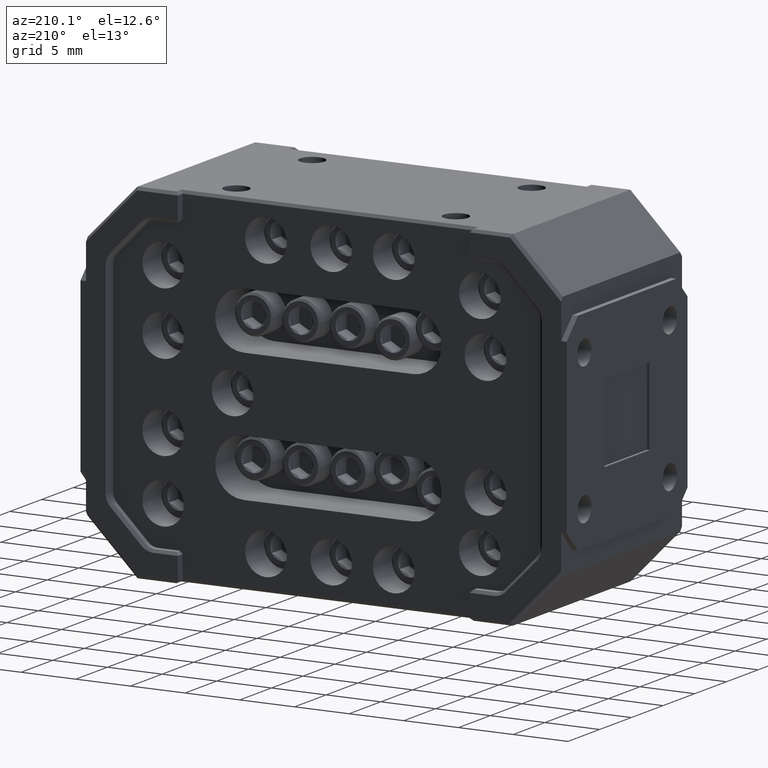
[diagram: clean part render]
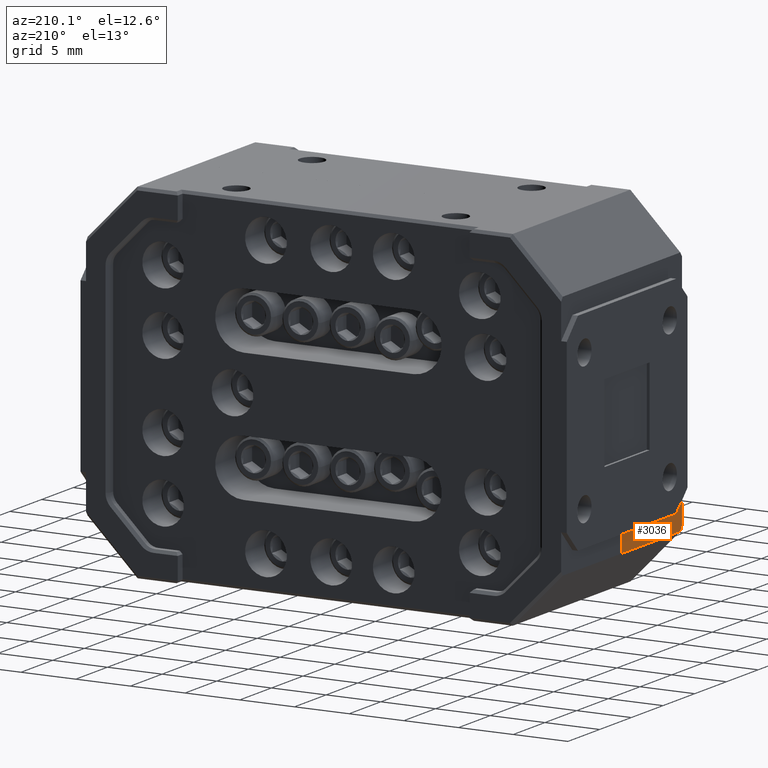
[diagram: same view with one face highlighted and labeled with its STEP entity id]
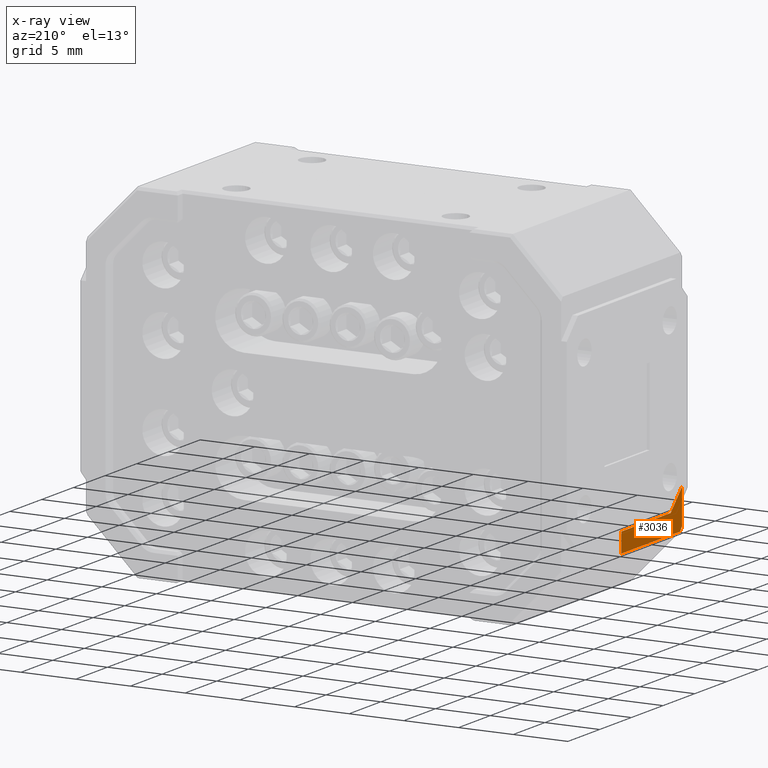
[diagram: x-ray of the same camera — body ghosted, the highlighted face saturated]
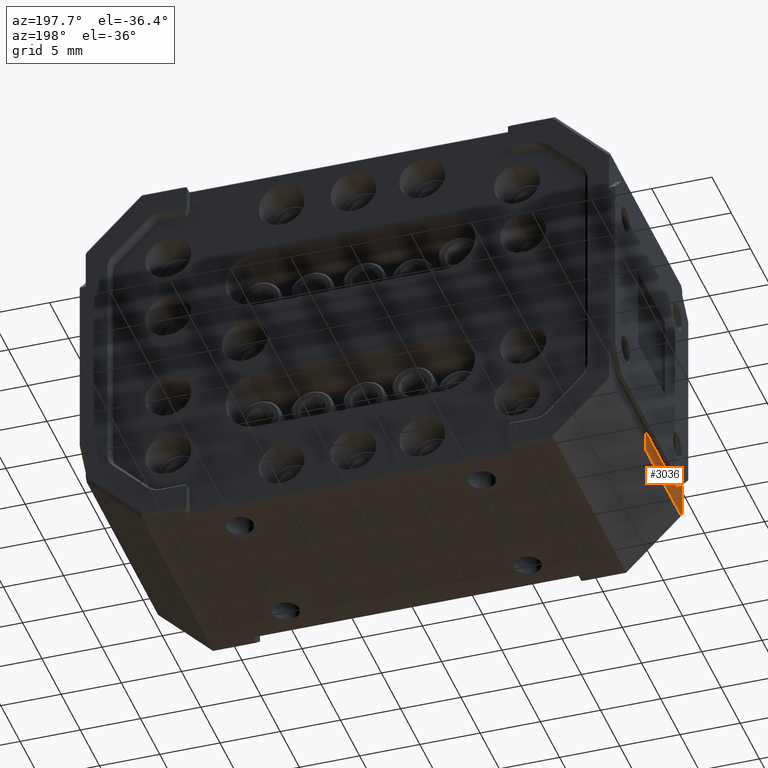
[diagram: same view with one face highlighted and labeled with its STEP entity id]
A machine part, auxiliary view. The second image highlights one B-rep face of the part: STEP entity #3036.
The next image is the same camera in x-ray: the body ghosted, the highlighted face saturated — about 0% of this face is hidden behind the body in this view.
A second angle (auxiliary view) of the same face is appended — the face is thin or edge-on in the first view.
In plain terms, the highlighted planar face has unit normal (-1, 0, 0).
Its self-contained STEP definition (entity closure, byte-faithful):
#415 = DIRECTION ( 'NONE',  ( 0.000000000000000000, 0.000000000000000000, 1.000000000000000000 ) ) ;
#693 = LINE ( 'NONE', #21487, #22748 ) ;
#1762 = EDGE_CURVE ( 'NONE', #16040, #18553, #20829, .T. ) ;
#1858 = CARTESIAN_POINT ( 'NONE',  ( -0.8550000000000009814, -0.3650000000000002132, -0.4449999999999995071 ) ) ;
#1924 = VECTOR ( 'NONE', #10160, 39.37007874015748143 ) ;
#1958 = AXIS2_PLACEMENT_3D ( 'NONE', #24567, #24163, #22352 ) ;
#2173 = EDGE_CURVE ( 'NONE', #24859, #25608, #693, .T. ) ;
#2398 = VECTOR ( 'NONE', #7057, 39.37007874015748854 ) ;
#2463 = CARTESIAN_POINT ( 'NONE',  ( -0.8550000000000009814, -0.3750000000000000555, -0.4308578643762687177 ) ) ;
#3036 = ADVANCED_FACE ( 'NONE', ( #15281 ), #7770, .T. ) ;
#7057 = DIRECTION ( 'NONE',  ( -0.000000000000000000, 0.7071067811865454633, -0.7071067811865493491 ) ) ;
#7568 = EDGE_CURVE ( 'NONE', #25735, #25608, #12567, .T. ) ;
#7770 = PLANE ( 'NONE',  #1958 ) ;
#8453 = DIRECTION ( 'NONE',  ( -0.000000000000000000, 1.000000000000000000, -0.000000000000000000 ) ) ;
#8738 = VECTOR ( 'NONE', #8453, 39.37007874015748143 ) ;
#9163 = LINE ( 'NONE', #26076, #2398 ) ;
#10160 = DIRECTION ( 'NONE',  ( -0.000000000000000000, 0.5773502691896259531, -0.8164965809277259234 ) ) ;
#10284 = CARTESIAN_POINT ( 'NONE',  ( -0.8550000000000009814, -0.2750287399045052150, -0.5722385762508458429 ) ) ;
#10930 = CARTESIAN_POINT ( 'NONE',  ( -0.8550000000000009814, -0.3750000000000000555, -0.3050000000000003264 ) ) ;
#11173 = LINE ( 'NONE', #27441, #8738 ) ;
#11370 = CARTESIAN_POINT ( 'NONE',  ( -0.8550000000000009814, -0.3750000000000000555, 0.000000000000000000 ) ) ;
#12168 = ORIENTED_EDGE ( 'NONE', *, *, #7568, .T. ) ;
#12243 = VECTOR ( 'NONE', #23706, 39.37007874015748143 ) ;
#12302 = VERTEX_POINT ( 'NONE', #10930 ) ;
#12312 = DIRECTION ( 'NONE',  ( 0.000000000000000000, 1.000000000000000000, 0.000000000000000000 ) ) ;
#12549 = CARTESIAN_POINT ( 'NONE',  ( -0.8550000000000009814, -1.365923996832131609E-16, -0.3750000000000007216 ) ) ;
#12567 = LINE ( 'NONE', #22996, #13473 ) ;
#13174 = ORIENTED_EDGE ( 'NONE', *, *, #2173, .F. ) ;
#13473 = VECTOR ( 'NONE', #12312, 39.37007874015748143 ) ;
#14204 = ORIENTED_EDGE ( 'NONE', *, *, #24863, .T. ) ;
#15281 = FACE_OUTER_BOUND ( 'NONE', #20435, .T. ) ;
#16040 = VERTEX_POINT ( 'NONE', #2463 ) ;
#17904 = EDGE_CURVE ( 'NONE', #12302, #25735, #9163, .T. ) ;
#18553 = VERTEX_POINT ( 'NONE', #1858 ) ;
#19044 = ORIENTED_EDGE ( 'NONE', *, *, #17904, .T. ) ;
#19672 = LINE ( 'NONE', #11370, #12243 ) ;
#19748 = CARTESIAN_POINT ( 'NONE',  ( -0.8550000000000009814, -0.3049999999999999378, -0.3750000000000007216 ) ) ;
#20435 = EDGE_LOOP ( 'NONE', ( #13174, #25941, #21709, #14204, #19044, #12168 ) ) ;
#20829 = LINE ( 'NONE', #10284, #1924 ) ;
#21487 = CARTESIAN_POINT ( 'NONE',  ( -0.8550000000000009814, 0.000000000000000000, 0.000000000000000000 ) ) ;
#21640 = EDGE_CURVE ( 'NONE', #18553, #24859, #11173, .T. ) ;
#21709 = ORIENTED_EDGE ( 'NONE', *, *, #1762, .F. ) ;
#22352 = DIRECTION ( 'NONE',  ( 0.000000000000000000, 0.000000000000000000, -1.000000000000000000 ) ) ;
#22748 = VECTOR ( 'NONE', #415, 39.37007874015748143 ) ;
#22996 = CARTESIAN_POINT ( 'NONE',  ( -0.8550000000000009814, -0.3749999999999999445, -0.3750000000000007216 ) ) ;
#23706 = DIRECTION ( 'NONE',  ( 0.000000000000000000, 0.000000000000000000, 1.000000000000000000 ) ) ;
#24163 = DIRECTION ( 'NONE',  ( -1.000000000000000000, 0.000000000000000000, 0.000000000000000000 ) ) ;
#24267 = CARTESIAN_POINT ( 'NONE',  ( -0.8550000000000009814, 0.000000000000000000, -0.4449999999999995071 ) ) ;
#24567 = CARTESIAN_POINT ( 'NONE',  ( -0.8550000000000009814, 0.000000000000000000, 0.000000000000000000 ) ) ;
#24859 = VERTEX_POINT ( 'NONE', #24267 ) ;
#24863 = EDGE_CURVE ( 'NONE', #16040, #12302, #19672, .T. ) ;
#25608 = VERTEX_POINT ( 'NONE', #12549 ) ;
#25735 = VERTEX_POINT ( 'NONE', #19748 ) ;
#25941 = ORIENTED_EDGE ( 'NONE', *, *, #21640, .F. ) ;
#26076 = CARTESIAN_POINT ( 'NONE',  ( -0.8550000000000009814, -0.3049999999999999378, -0.3750000000000007216 ) ) ;
#27441 = CARTESIAN_POINT ( 'NONE',  ( -0.8550000000000009814, -0.3750000000000000555, -0.4449999999999995071 ) ) ;